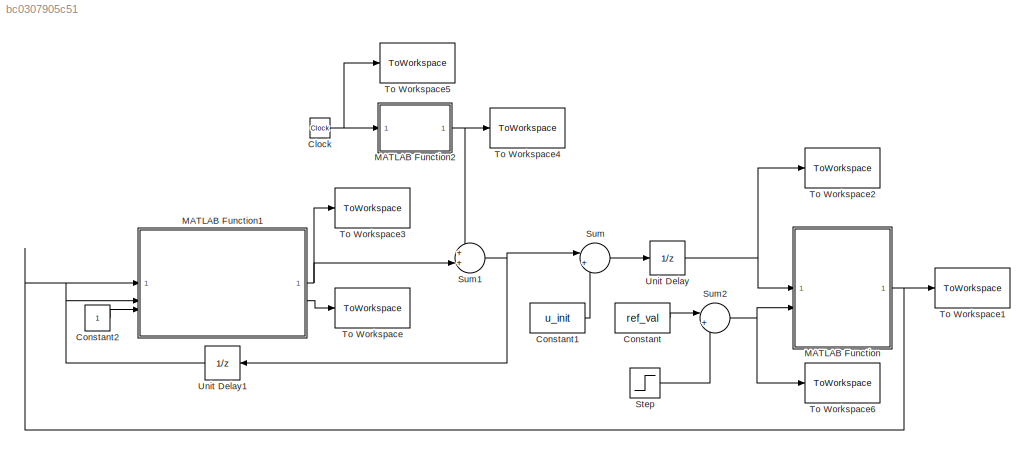
MODEL slx_bc0307905c51
KIND model
CONFIG AbsTol = auto
CONFIG EnableMultiTasking = off
CONFIG FixedStep = 1
CONFIG MaxStep = auto
CONFIG MinStep = auto
CONFIG RelTol = 1e-3
CONFIG SampleTimeConstraint = Unconstrained
CONFIG SolverName = FixedStepDiscrete
CONFIG StartTime = 0.0
CONFIG StopTime = k_end
BLOCK [Clock] Clock
BLOCK [Constant] Constant
  Value = ref_val
BLOCK [Constant] Constant1
  Value = u_init
BLOCK [Constant] Constant2
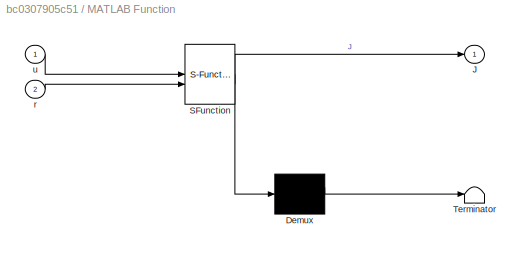
BLOCK [SubSystem] MATLAB Function
  ErrorFcn = Stateflow.Translate.translate
  LibrarySourceBlock = simulink/User-Defined\nFunctions/MATLAB Function
  PermitHierarchicalResolution = ExplicitOnly
  SFBlockType = MATLAB Function
  TreatAsAtomicUnit = on
BLOCK [Demux] MATLAB Function/ Demux 
  Outputs = 1
BLOCK [S-Function] MATLAB Function/ SFunction 
  EnableBusSupport = on
  FunctionName = sf_sfun
  PortCounts = [2 2]
  SFcnIsStateOwnerBlock = off
  SFunctionDeploymentMode = off
  Tag = Stateflow S-Function 2
BLOCK [Terminator] MATLAB Function/ Terminator 
BLOCK [Outport] MATLAB Function/J
BLOCK [Inport] MATLAB Function/r
  Port = 2
BLOCK [Inport] MATLAB Function/u
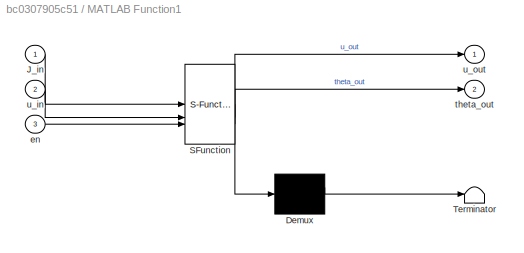
BLOCK [SubSystem] MATLAB Function1
  ErrorFcn = Stateflow.Translate.translate
  LibrarySourceBlock = simulink/User-Defined\nFunctions/MATLAB Function
  PermitHierarchicalResolution = ExplicitOnly
  SFBlockType = MATLAB Function
  TreatAsAtomicUnit = on
BLOCK [Demux] MATLAB Function1/ Demux 
  Outputs = 1
BLOCK [S-Function] MATLAB Function1/ SFunction 
  EnableBusSupport = on
  FunctionName = sf_sfun
  Parameters = Nc
  PortCounts = [3 3]
  SFcnIsStateOwnerBlock = off
  SFunctionDeploymentMode = off
  Tag = Stateflow S-Function 1
BLOCK [Terminator] MATLAB Function1/ Terminator 
BLOCK [Inport] MATLAB Function1/J_in
BLOCK [Inport] MATLAB Function1/en
  Port = 3
BLOCK [Outport] MATLAB Function1/theta_out
  Port = 2
BLOCK [Inport] MATLAB Function1/u_in
  Port = 2
BLOCK [Outport] MATLAB Function1/u_out
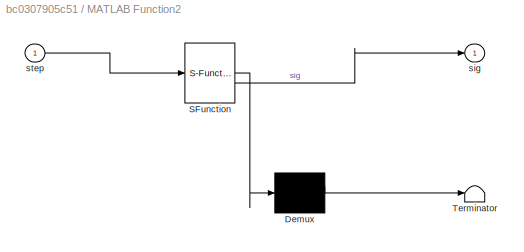
BLOCK [SubSystem] MATLAB Function2
  ErrorFcn = Stateflow.Translate.translate
  LibrarySourceBlock = simulink/User-Defined\nFunctions/MATLAB Function
  PermitHierarchicalResolution = ExplicitOnly
  SFBlockType = MATLAB Function
  TreatAsAtomicUnit = on
BLOCK [Demux] MATLAB Function2/ Demux 
  Outputs = 1
BLOCK [S-Function] MATLAB Function2/ SFunction 
  EnableBusSupport = on
  FunctionName = sf_sfun
  PortCounts = [1 2]
  SFcnIsStateOwnerBlock = off
  SFunctionDeploymentMode = off
  Tag = Stateflow S-Function 3
BLOCK [Terminator] MATLAB Function2/ Terminator 
BLOCK [Outport] MATLAB Function2/sig
BLOCK [Inport] MATLAB Function2/step
BLOCK [Step] Step
  After = -ref_val
  SampleTime = 0
  Time = k_jump
BLOCK [Sum] Sum
  Inputs = |++
BLOCK [Sum] Sum1
  Inputs = ++|
BLOCK [Sum] Sum2
  Inputs = |++
BLOCK [ToWorkspace] To Workspace
  FixptAsFi = on
  MaxDataPoints = inf
  SampleTime = -1
  VariableName = theta
BLOCK [ToWorkspace] To Workspace1
  FixptAsFi = on
  MaxDataPoints = inf
  SampleTime = -1
  VariableName = J
BLOCK [ToWorkspace] To Workspace2
  FixptAsFi = on
  MaxDataPoints = inf
  SampleTime = -1
  VariableName = u
BLOCK [ToWorkspace] To Workspace3
  FixptAsFi = on
  MaxDataPoints = inf
  SampleTime = -1
  VariableName = u_RCAC
BLOCK [ToWorkspace] To Workspace4
  FixptAsFi = on
  MaxDataPoints = inf
  SampleTime = -1
  VariableName = pert
BLOCK [ToWorkspace] To Workspace5
  FixptAsFi = on
  MaxDataPoints = inf
  SampleTime = -1
  VariableName = tt
BLOCK [ToWorkspace] To Workspace6
  FixptAsFi = on
  MaxDataPoints = inf
  SampleTime = -1
  VariableName = ref
BLOCK [UnitDelay] Unit Delay
  HasFrameUpgradeWarning = on
  InitialCondition = u_init
  SampleTime = -1
BLOCK [UnitDelay] Unit Delay1
  HasFrameUpgradeWarning = on
  SampleTime = -1
NET Clock:1 -> MATLAB Function2:1, To Workspace5:1
LINE Constant1:1 -> Sum:2
LINE Constant2:1 -> MATLAB Function1:3
LINE Constant:1 -> Sum2:1
NET MATLAB Function1:1 -> Sum1:2, To Workspace3:1
LINE MATLAB Function1:2 -> To Workspace:1
NET MATLAB Function2:1 -> Sum1:1, To Workspace4:1
NET MATLAB Function:1 -> MATLAB Function1:1, To Workspace1:1
LINE Step:1 -> Sum2:2
NET Sum1:1 -> Sum:1, Unit Delay1:1
NET Sum2:1 -> MATLAB Function:2, To Workspace6:1
LINE Sum:1 -> Unit Delay:1
LINE Unit Delay1:1 -> MATLAB Function1:2
NET Unit Delay:1 -> MATLAB Function:1, To Workspace2:1
note: NET lines group one-source signal fan-out (src -> all destinations, sorted); 1:1 wires keep LINE
CHART MATLAB Function1 states=1 transitions=1
  STATE_LABEL 'eML_blk_kernel()'
  STATE_LABEL 'SCRIPT:\nfunction [u_out, theta_out] = RCAC_ESC(J_in, u_in, en, Nc)\n\npersistent Grad_Est DDRCAC_Cont uouttemp thetaouttemp opts\n\nif isempty(uouttemp)\n    opts = RCAC_ESC_KF_SISO_define_opts();\n    Grad_Est = grad_est_KF(opts.lu, opts.lz, opts.indi, opts.P0_G, opts.Q, opts.R);\n    DDRCAC_Cont = DDRCAC(opts.lu, opts.lz, opts.Nc, opts.P0_C, opts.Ru, opts.nu);\n    uouttemp = 0.0;\n    thetaouttemp = zer...<+539ch>'
CHART MATLAB Function states=1 transitions=1
  STATE_LABEL 'eML_blk_kernel()'
  STATE_LABEL 'SCRIPT:\nfunction J = Cost(u,r)\n\n    J = CostFcnSISO(u,r);\n\nend\n'
CHART MATLAB Function2 states=1 transitions=1
  STATE_LABEL 'eML_blk_kernel()'
  STATE_LABEL 'SCRIPT:\nfunction sig = Perturbation(step)\n    sig = PertFcnSISO(step);\nend'
CHART  states=0 transitions=0
CHART  states=0 transitions=0
CHART  states=0 transitions=0
